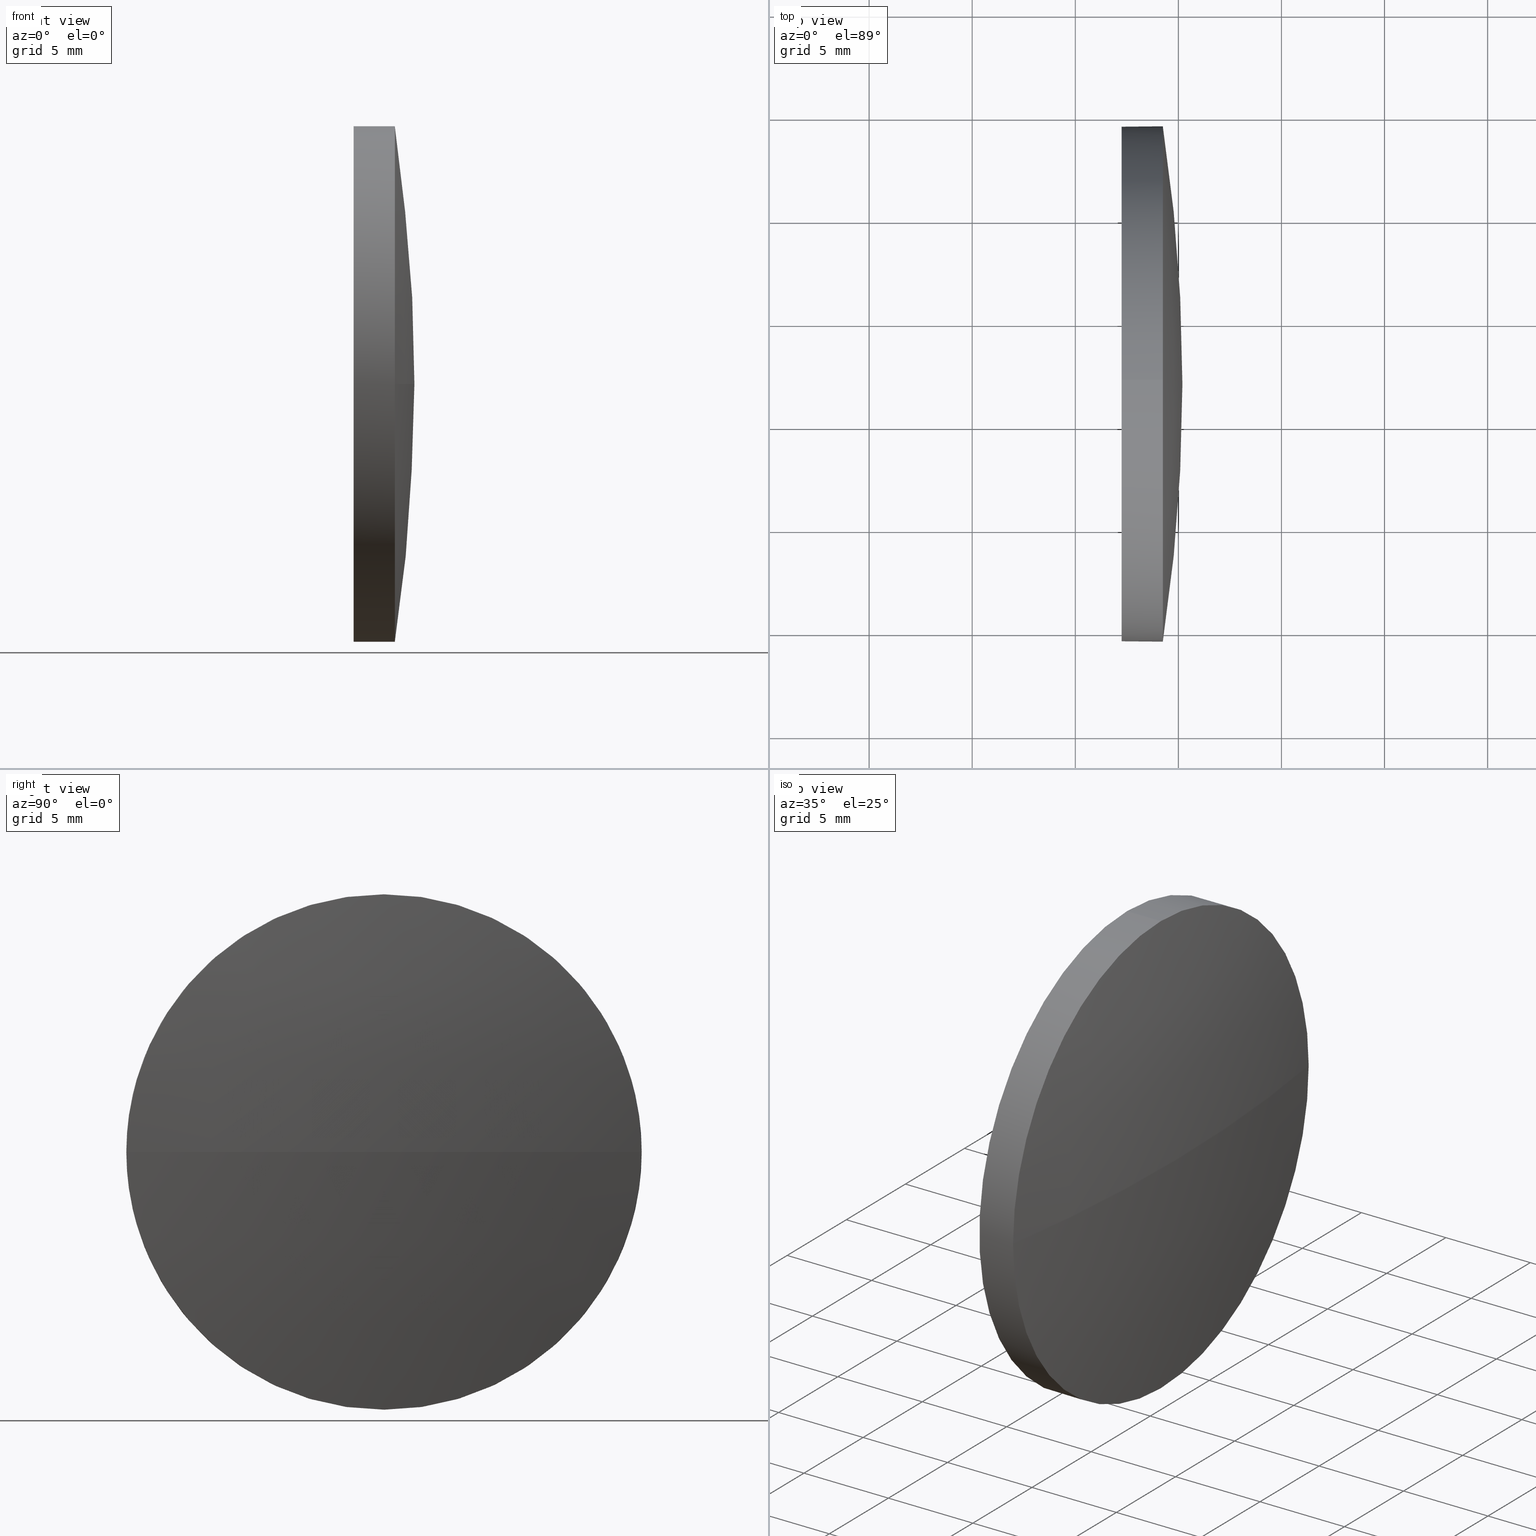
[diagram: canonical four-view strip — front | top / right | iso, engineering-drawing reading convention]
A machine part, canonical four-view strip (front | top / right | iso — engineering-drawing reading convention). The complete STEP part file that produces these views, byte-faithful:
ISO-10303-21;
HEADER;
FILE_DESCRIPTION (( 'STEP AP214' ),
    '1' );
FILE_NAME ('100132.STEP',
    '2019-05-15T01:44:23',
    ( '' ),
    ( '' ),
    'SwSTEP 2.0',
    'SolidWorks 2016',
    '' );
FILE_SCHEMA (( 'AUTOMOTIVE_DESIGN' ));
ENDSEC;

DATA;
#1 = CARTESIAN_POINT ( 'NONE',  ( 579.2456314118285300, 209.4790640844908600, 0.0000000000000000000 ) ) ;
#2 = AXIS2_PLACEMENT_3D ( 'NONE', #87, #151, #180 ) ;
#3 = SHAPE_DEFINITION_REPRESENTATION ( #178, #54 ) ;
#4 = CARTESIAN_POINT ( 'NONE',  ( 580.1956314118284600, 196.9790640844907400, 0.0000000000000000000 ) ) ;
#5 = DIRECTION ( 'NONE',  ( 0.0000000000000000000, 1.000000000000000000, 0.0000000000000000000 ) ) ;
#6 = SPHERICAL_SURFACE ( 'NONE', #37, 82.71184210526288900 ) ;
#7 = AXIS2_PLACEMENT_3D ( 'NONE', #159, #76, #172 ) ;
#8 = CIRCLE ( 'NONE', #183, 12.49999999999998400 ) ;
#9 =( NAMED_UNIT ( * ) SI_UNIT ( $, .STERADIAN. ) SOLID_ANGLE_UNIT ( ) );
#10 = EDGE_CURVE ( 'NONE', #94, #63, #162, .T. ) ;
#11 = CARTESIAN_POINT ( 'NONE',  ( 579.2456314118285300, 196.9790640844909100, 0.0000000000000000000 ) ) ;
#12 = ADVANCED_FACE ( 'NONE', ( #125 ), #122, .T. ) ;
#13 =( NAMED_UNIT ( * ) SI_UNIT ( $, .STERADIAN. ) SOLID_ANGLE_UNIT ( ) );
#14 = SPHERICAL_SURFACE ( 'NONE', #114, 82.71184210526288900 ) ;
#15 = PLANE ( 'NONE',  #31 ) ;
#16 = AXIS2_PLACEMENT_3D ( 'NONE', #174, #73, #103 ) ;
#17 = CIRCLE ( 'NONE', #27, 12.49999999999998400 ) ;
#18 = EDGE_CURVE ( 'NONE', #63, #94, #50, .T. ) ;
#19 = DIRECTION ( 'NONE',  ( -0.0000000000000000000, 0.0000000000000000000, -1.000000000000000000 ) ) ;
#20 = DIRECTION ( 'NONE',  ( 0.0000000000000000000, 0.0000000000000000000, 1.000000000000000000 ) ) ;
#21 = VERTEX_POINT ( 'NONE', #1 ) ;
#22 = FILL_AREA_STYLE ('',( #139 ) ) ;
#23 = APPLICATION_CONTEXT ( 'automotive_design' ) ;
#24 = EDGE_CURVE ( 'NONE', #56, #21, #28, .T. ) ;
#25 = AXIS2_PLACEMENT_3D ( 'NONE', #11, #179, #85 ) ;
#26 = ADVANCED_FACE ( 'NONE', ( #149 ), #6, .T. ) ;
#27 = AXIS2_PLACEMENT_3D ( 'NONE', #121, #60, #20 ) ;
#28 = CIRCLE ( 'NONE', #7, 82.71184210526288900 ) ;
#29 = LINE ( 'NONE', #135, #80 ) ;
#30 = DIRECTION ( 'NONE',  ( 0.0000000000000000000, 0.0000000000000000000, 1.000000000000000000 ) ) ;
#31 = AXIS2_PLACEMENT_3D ( 'NONE', #168, #86, #169 ) ;
#32 = CARTESIAN_POINT ( 'NONE',  ( 579.2456314118285300, 184.4790640844908300, -1.530808498934181500E-015 ) ) ;
#33 = DIRECTION ( 'NONE',  ( -1.000000000000000000, -0.0000000000000000000, -0.0000000000000000000 ) ) ;
#34 = EDGE_CURVE ( 'NONE', #165, #63, #93, .T. ) ;
#35 = SURFACE_SIDE_STYLE ('',( #153 ) ) ;
#36 = PRODUCT_DEFINITION_CONTEXT ( 'detailed design', #167, 'design' ) ;
#37 = AXIS2_PLACEMENT_3D ( 'NONE', #91, #19, #120 ) ;
#38 = ORIENTED_EDGE ( 'NONE', *, *, #138, .T. ) ;
#39 = APPLICATION_PROTOCOL_DEFINITION ( 'draft international standard', 'automotive_design', 1998, #167 ) ;
#40 = UNCERTAINTY_MEASURE_WITH_UNIT (LENGTH_MEASURE( 1.000000000000000100E-005 ), #124, 'distance_accuracy_value', 'NONE');
#41 = ORIENTED_EDGE ( 'NONE', *, *, #163, .F. ) ;
#42 = CIRCLE ( 'NONE', #145, 12.49999999999998400 ) ;
#43 =( LENGTH_UNIT ( ) NAMED_UNIT ( * ) SI_UNIT ( .MILLI., .METRE. ) );
#44 = DIRECTION ( 'NONE',  ( 0.0000000000000000000, 0.0000000000000000000, 1.000000000000000000 ) ) ;
#45 = ORIENTED_EDGE ( 'NONE', *, *, #18, .F. ) ;
#46 = ORIENTED_EDGE ( 'NONE', *, *, #18, .T. ) ;
#47 = CARTESIAN_POINT ( 'NONE',  ( 574.8800155090675600, 196.9790640844909100, -12.49999999999998400 ) ) ;
#48 = CYLINDRICAL_SURFACE ( 'NONE', #62, 12.49999999999998400 ) ;
#49 =( NAMED_UNIT ( * ) PLANE_ANGLE_UNIT ( ) SI_UNIT ( $, .RADIAN. ) );
#50 = CIRCLE ( 'NONE', #83, 12.49999999999998400 ) ;
#51 = CARTESIAN_POINT ( 'NONE',  ( 577.2456314118285300, 196.9790640844909100, 12.49999999999998400 ) ) ;
#52 = VERTEX_POINT ( 'NONE', #140 ) ;
#53 = EDGE_CURVE ( 'NONE', #165, #75, #8, .T. ) ;
#54 = ADVANCED_BREP_SHAPE_REPRESENTATION ( '100132', ( #104, #2 ), #96 ) ;
#55 = EDGE_LOOP ( 'NONE', ( #113, #46 ) ) ;
#56 = VERTEX_POINT ( 'NONE', #4 ) ;
#57 = ORIENTED_EDGE ( 'NONE', *, *, #106, .T. ) ;
#58 = CARTESIAN_POINT ( 'NONE',  ( 577.2456314118285300, 196.9790640844909100, 0.0000000000000000000 ) ) ;
#59 = CARTESIAN_POINT ( 'NONE',  ( 579.2456314118285300, 196.9790640844909100, 0.0000000000000000000 ) ) ;
#60 = DIRECTION ( 'NONE',  ( -1.000000000000000000, -0.0000000000000000000, -0.0000000000000000000 ) ) ;
#61 = PRESENTATION_LAYER_ASSIGNMENT (  '', '', ( #137 ) ) ;
#62 = AXIS2_PLACEMENT_3D ( 'NONE', #92, #130, #117 ) ;
#63 = VERTEX_POINT ( 'NONE', #143 ) ;
#64 =( NAMED_UNIT ( * ) PLANE_ANGLE_UNIT ( ) SI_UNIT ( $, .RADIAN. ) );
#65 = APPLICATION_PROTOCOL_DEFINITION ( 'draft international standard', 'automotive_design', 1998, #23 ) ;
#66 = ADVANCED_FACE ( 'NONE', ( #102 ), #48, .T. ) ;
#67 = FACE_OUTER_BOUND ( 'NONE', #55, .T. ) ;
#68 = CARTESIAN_POINT ( 'NONE',  ( 579.2456314118285300, 196.9790640844909100, 0.0000000000000000000 ) ) ;
#69 = ORIENTED_EDGE ( 'NONE', *, *, #74, .T. ) ;
#70 = UNCERTAINTY_MEASURE_WITH_UNIT (LENGTH_MEASURE( 1.000000000000000100E-005 ), #146, 'distance_accuracy_value', 'NONE');
#71 = PRODUCT_DEFINITION_FORMATION_WITH_SPECIFIED_SOURCE ( '�κ�', '', #155, .NOT_KNOWN. ) ;
#72 = DIRECTION ( 'NONE',  ( -1.000000000000000000, -0.0000000000000000000, -0.0000000000000000000 ) ) ;
#73 = DIRECTION ( 'NONE',  ( -1.000000000000000000, -0.0000000000000000000, -0.0000000000000000000 ) ) ;
#74 = EDGE_CURVE ( 'NONE', #75, #52, #17, .T. ) ;
#75 = VERTEX_POINT ( 'NONE', #32 ) ;
#76 = DIRECTION ( 'NONE',  ( -0.0000000000000000000, 0.0000000000000000000, 1.000000000000000000 ) ) ;
#77 = CARTESIAN_POINT ( 'NONE',  ( 577.2456314118285300, 196.9790640844909100, 0.0000000000000000000 ) ) ;
#78 = DIRECTION ( 'NONE',  ( -0.0000000000000000000, 0.0000000000000000000, -1.000000000000000000 ) ) ;
#79 = ORIENTED_EDGE ( 'NONE', *, *, #74, .F. ) ;
#80 = VECTOR ( 'NONE', #184, 1000.000000000000000 ) ;
#81 = CIRCLE ( 'NONE', #25, 12.49999999999998400 ) ;
#82 = VECTOR ( 'NONE', #33, 1000.000000000000000 ) ;
#83 = AXIS2_PLACEMENT_3D ( 'NONE', #58, #171, #30 ) ;
#84 = ORIENTED_EDGE ( 'NONE', *, *, #138, .F. ) ;
#85 = DIRECTION ( 'NONE',  ( 0.0000000000000000000, 0.0000000000000000000, 1.000000000000000000 ) ) ;
#86 = DIRECTION ( 'NONE',  ( 1.000000000000000000, 0.0000000000000000000, 0.0000000000000000000 ) ) ;
#87 = CARTESIAN_POINT ( 'NONE',  ( 0.0000000000000000000, 0.0000000000000000000, 0.0000000000000000000 ) ) ;
#88 = ORIENTED_EDGE ( 'NONE', *, *, #24, .T. ) ;
#89 = ORIENTED_EDGE ( 'NONE', *, *, #34, .F. ) ;
#90 = EDGE_LOOP ( 'NONE', ( #175, #88, #41, #79 ) ) ;
#91 = CARTESIAN_POINT ( 'NONE',  ( 497.4837893065656000, 196.9790640844907400, 0.0000000000000000000 ) ) ;
#92 = CARTESIAN_POINT ( 'NONE',  ( 574.8800155090675600, 196.9790640844909100, 0.0000000000000000000 ) ) ;
#93 = LINE ( 'NONE', #47, #82 ) ;
#94 = VERTEX_POINT ( 'NONE', #51 ) ;
#95 = FILL_AREA_STYLE_COLOUR ( '', #158 ) ;
#96 =( GEOMETRIC_REPRESENTATION_CONTEXT ( 3 ) GLOBAL_UNCERTAINTY_ASSIGNED_CONTEXT ( ( #133 ) ) GLOBAL_UNIT_ASSIGNED_CONTEXT ( ( #43, #64, #13 ) ) REPRESENTATION_CONTEXT ( 'NONE', 'WORKASPACE' ) );
#97 =( NAMED_UNIT ( * ) PLANE_ANGLE_UNIT ( ) SI_UNIT ( $, .RADIAN. ) );
#98 = ADVANCED_FACE ( 'NONE', ( #164 ), #14, .T. ) ;
#99 = ORIENTED_EDGE ( 'NONE', *, *, #126, .F. ) ;
#100 = MECHANICAL_DESIGN_GEOMETRIC_PRESENTATION_REPRESENTATION (  '', ( #123 ), #108 ) ;
#101 = CIRCLE ( 'NONE', #129, 82.71184210526291700 ) ;
#102 = FACE_OUTER_BOUND ( 'NONE', #128, .T. ) ;
#103 = DIRECTION ( 'NONE',  ( 0.0000000000000000000, 0.0000000000000000000, 1.000000000000000000 ) ) ;
#104 = MANIFOLD_SOLID_BREP ( '��ת1', #147 ) ;
#105 = PRODUCT_RELATED_PRODUCT_CATEGORY ( 'part', '', ( #155 ) ) ;
#106 = EDGE_CURVE ( 'NONE', #56, #75, #101, .T. ) ;
#107 = EDGE_LOOP ( 'NONE', ( #116, #57, #136, #99 ) ) ;
#108 =( GEOMETRIC_REPRESENTATION_CONTEXT ( 3 ) GLOBAL_UNCERTAINTY_ASSIGNED_CONTEXT ( ( #70 ) ) GLOBAL_UNIT_ASSIGNED_CONTEXT ( ( #146, #49, #144 ) ) REPRESENTATION_CONTEXT ( 'NONE', 'WORKASPACE' ) );
#109 = ORIENTED_EDGE ( 'NONE', *, *, #126, .T. ) ;
#110 = PRESENTATION_STYLE_ASSIGNMENT (( #176 ) ) ;
#111 = PRODUCT_CONTEXT ( 'NONE', #23, 'mechanical' ) ;
#112 = CARTESIAN_POINT ( 'NONE',  ( 497.4837893065656000, 196.9790640844907400, 0.0000000000000000000 ) ) ;
#113 = ORIENTED_EDGE ( 'NONE', *, *, #10, .T. ) ;
#114 = AXIS2_PLACEMENT_3D ( 'NONE', #161, #78, #5 ) ;
#115 = SURFACE_STYLE_FILL_AREA ( #177 ) ;
#116 = ORIENTED_EDGE ( 'NONE', *, *, #24, .F. ) ;
#117 = DIRECTION ( 'NONE',  ( 0.0000000000000000000, 0.0000000000000000000, 1.000000000000000000 ) ) ;
#118 = DIRECTION ( 'NONE',  ( 0.0000000000000000000, 0.0000000000000000000, 1.000000000000000000 ) ) ;
#119 = ORIENTED_EDGE ( 'NONE', *, *, #53, .T. ) ;
#120 = DIRECTION ( 'NONE',  ( 0.0000000000000000000, 1.000000000000000000, 0.0000000000000000000 ) ) ;
#121 = CARTESIAN_POINT ( 'NONE',  ( 579.2456314118285300, 196.9790640844909100, 0.0000000000000000000 ) ) ;
#122 = CYLINDRICAL_SURFACE ( 'NONE', #16, 12.49999999999998400 ) ;
#123 = STYLED_ITEM ( 'NONE', ( #141 ), #104 ) ;
#124 =( LENGTH_UNIT ( ) NAMED_UNIT ( * ) SI_UNIT ( .MILLI., .METRE. ) );
#125 = FACE_OUTER_BOUND ( 'NONE', #148, .T. ) ;
#126 = EDGE_CURVE ( 'NONE', #21, #165, #42, .T. ) ;
#127 = DIRECTION ( 'NONE',  ( 0.0000000000000000000, 1.224646799147353200E-016, -1.000000000000000000 ) ) ;
#128 = EDGE_LOOP ( 'NONE', ( #89, #119, #69, #38, #45 ) ) ;
#129 = AXIS2_PLACEMENT_3D ( 'NONE', #112, #127, #152 ) ;
#130 = DIRECTION ( 'NONE',  ( -1.000000000000000000, -0.0000000000000000000, -0.0000000000000000000 ) ) ;
#131 = PRESENTATION_LAYER_ASSIGNMENT (  '', '', ( #123 ) ) ;
#132 = SURFACE_STYLE_USAGE ( .BOTH. , #35 ) ;
#133 = UNCERTAINTY_MEASURE_WITH_UNIT (LENGTH_MEASURE( 1.000000000000000100E-005 ), #43, 'distance_accuracy_value', 'NONE');
#134 = CARTESIAN_POINT ( 'NONE',  ( 579.2456314118285300, 196.9790640844909100, -12.49999999999998400 ) ) ;
#135 = CARTESIAN_POINT ( 'NONE',  ( 574.8800155090675600, 196.9790640844909100, 12.49999999999998400 ) ) ;
#136 = ORIENTED_EDGE ( 'NONE', *, *, #53, .F. ) ;
#137 = STYLED_ITEM ( 'NONE', ( #110 ), #54 ) ;
#138 = EDGE_CURVE ( 'NONE', #52, #94, #29, .T. ) ;
#139 = FILL_AREA_STYLE_COLOUR ( '', #173 ) ;
#140 = CARTESIAN_POINT ( 'NONE',  ( 579.2456314118285300, 196.9790640844909100, 12.49999999999998400 ) ) ;
#141 = PRESENTATION_STYLE_ASSIGNMENT (( #132 ) ) ;
#142 = PRODUCT_DEFINITION ( 'δ֪', '', #71, #36 ) ;
#143 = CARTESIAN_POINT ( 'NONE',  ( 577.2456314118285300, 196.9790640844909100, -12.49999999999998400 ) ) ;
#144 =( NAMED_UNIT ( * ) SI_UNIT ( $, .STERADIAN. ) SOLID_ANGLE_UNIT ( ) );
#145 = AXIS2_PLACEMENT_3D ( 'NONE', #68, #182, #44 ) ;
#146 =( LENGTH_UNIT ( ) NAMED_UNIT ( * ) SI_UNIT ( .MILLI., .METRE. ) );
#147 = CLOSED_SHELL ( 'NONE', ( #12, #98, #26, #66, #150 ) ) ;
#148 = EDGE_LOOP ( 'NONE', ( #109, #185, #170, #84, #186 ) ) ;
#149 = FACE_OUTER_BOUND ( 'NONE', #90, .T. ) ;
#150 = ADVANCED_FACE ( 'NONE', ( #67 ), #15, .F. ) ;
#151 = DIRECTION ( 'NONE',  ( 0.0000000000000000000, 0.0000000000000000000, 1.000000000000000000 ) ) ;
#152 = DIRECTION ( 'NONE',  ( 0.0000000000000000000, 1.000000000000000000, 1.224646799147352700E-016 ) ) ;
#153 = SURFACE_STYLE_FILL_AREA ( #22 ) ;
#154 =( GEOMETRIC_REPRESENTATION_CONTEXT ( 3 ) GLOBAL_UNCERTAINTY_ASSIGNED_CONTEXT ( ( #40 ) ) GLOBAL_UNIT_ASSIGNED_CONTEXT ( ( #124, #97, #9 ) ) REPRESENTATION_CONTEXT ( 'NONE', 'WORKASPACE' ) );
#155 = PRODUCT ( '100132', '100132', '', ( #111 ) ) ;
#156 = MECHANICAL_DESIGN_GEOMETRIC_PRESENTATION_REPRESENTATION (  '', ( #137 ), #154 ) ;
#157 = DIRECTION ( 'NONE',  ( 0.0000000000000000000, 0.0000000000000000000, 1.000000000000000000 ) ) ;
#158 = COLOUR_RGB ( '',1.000000000000000000, 1.000000000000000000, 1.000000000000000000 ) ;
#159 = CARTESIAN_POINT ( 'NONE',  ( 497.4837893065656000, 196.9790640844907400, 0.0000000000000000000 ) ) ;
#160 = DIRECTION ( 'NONE',  ( -1.000000000000000000, -0.0000000000000000000, -0.0000000000000000000 ) ) ;
#161 = CARTESIAN_POINT ( 'NONE',  ( 497.4837893065656000, 196.9790640844907400, 0.0000000000000000000 ) ) ;
#162 = CIRCLE ( 'NONE', #181, 12.49999999999998400 ) ;
#163 = EDGE_CURVE ( 'NONE', #52, #21, #81, .T. ) ;
#164 = FACE_OUTER_BOUND ( 'NONE', #107, .T. ) ;
#165 = VERTEX_POINT ( 'NONE', #134 ) ;
#166 = SURFACE_SIDE_STYLE ('',( #115 ) ) ;
#167 = APPLICATION_CONTEXT ( 'automotive_design' ) ;
#168 = CARTESIAN_POINT ( 'NONE',  ( 577.2456314118285300, 196.9790640844909100, 0.0000000000000000000 ) ) ;
#169 = DIRECTION ( 'NONE',  ( 0.0000000000000000000, 0.0000000000000000000, -1.000000000000000000 ) ) ;
#170 = ORIENTED_EDGE ( 'NONE', *, *, #10, .F. ) ;
#171 = DIRECTION ( 'NONE',  ( -1.000000000000000000, -0.0000000000000000000, -0.0000000000000000000 ) ) ;
#172 = DIRECTION ( 'NONE',  ( 1.000000000000000000, 0.0000000000000000000, 0.0000000000000000000 ) ) ;
#173 = COLOUR_RGB ( '',1.000000000000000000, 1.000000000000000000, 1.000000000000000000 ) ;
#174 = CARTESIAN_POINT ( 'NONE',  ( 574.8800155090675600, 196.9790640844909100, 0.0000000000000000000 ) ) ;
#175 = ORIENTED_EDGE ( 'NONE', *, *, #106, .F. ) ;
#176 = SURFACE_STYLE_USAGE ( .BOTH. , #166 ) ;
#177 = FILL_AREA_STYLE ('',( #95 ) ) ;
#178 = PRODUCT_DEFINITION_SHAPE ( 'NONE', 'NONE',  #142 ) ;
#179 = DIRECTION ( 'NONE',  ( -1.000000000000000000, -0.0000000000000000000, -0.0000000000000000000 ) ) ;
#180 = DIRECTION ( 'NONE',  ( 1.000000000000000000, 0.0000000000000000000, 0.0000000000000000000 ) ) ;
#181 = AXIS2_PLACEMENT_3D ( 'NONE', #77, #72, #118 ) ;
#182 = DIRECTION ( 'NONE',  ( -1.000000000000000000, -0.0000000000000000000, -0.0000000000000000000 ) ) ;
#183 = AXIS2_PLACEMENT_3D ( 'NONE', #59, #160, #157 ) ;
#184 = DIRECTION ( 'NONE',  ( -1.000000000000000000, -0.0000000000000000000, -0.0000000000000000000 ) ) ;
#185 = ORIENTED_EDGE ( 'NONE', *, *, #34, .T. ) ;
#186 = ORIENTED_EDGE ( 'NONE', *, *, #163, .T. ) ;
ENDSEC;
END-ISO-10303-21;
